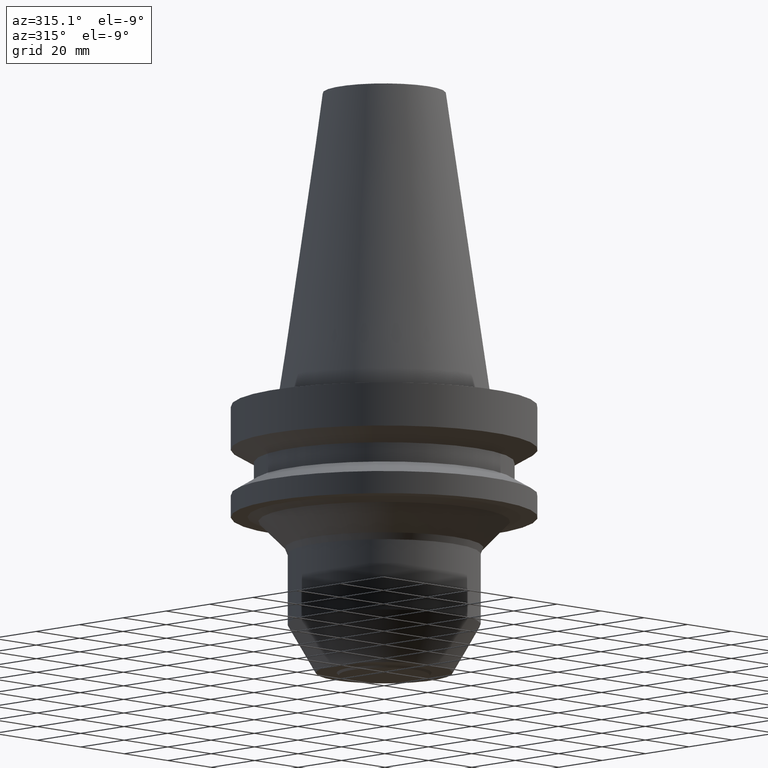
[diagram: clean part render]
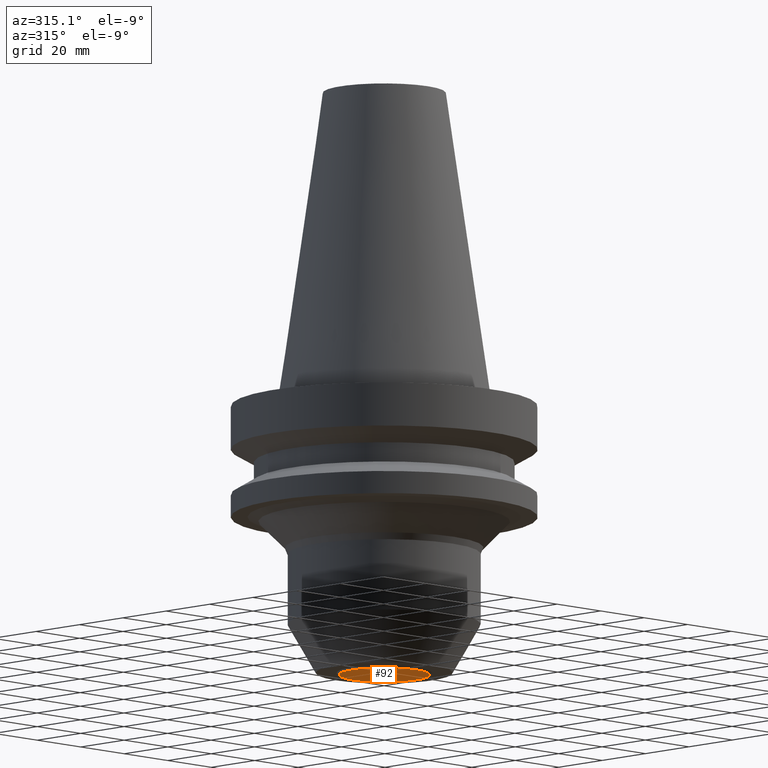
[diagram: same view with one face highlighted and labeled with its STEP entity id]
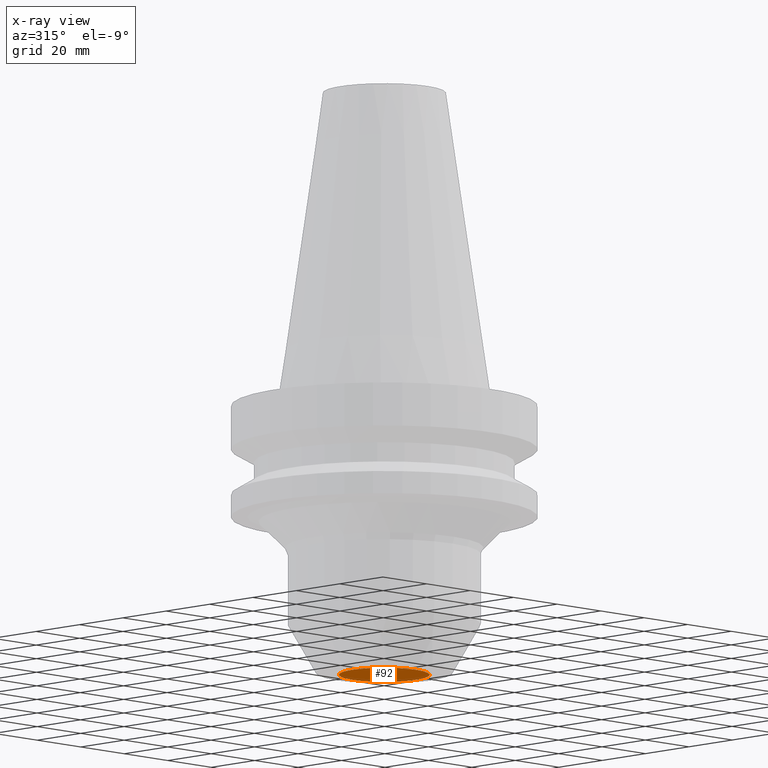
[diagram: x-ray of the same camera — body ghosted, the highlighted face saturated]
A machine part, auxiliary view. The second image highlights one B-rep face of the part: STEP entity #92.
The next image is the same camera in x-ray: the body ghosted, the highlighted face saturated — about 0% of this face is hidden behind the body in this view.
In plain terms, the highlighted planar face has unit normal (0, 0, -1).
Its self-contained STEP definition (entity closure, byte-faithful):
#92=ADVANCED_FACE('',(#144),#145,.T.);
#144=FACE_OUTER_BOUND('',#196,.T.);
#145=PLANE('',#197);
#196=EDGE_LOOP('',(#282));
#197=AXIS2_PLACEMENT_3D('',#283,#284,#285);
#282=ORIENTED_EDGE('',*,*,#302,.T.);
#283=CARTESIAN_POINT('',(5.51091059616302E-015,7.399999999991,-89.9999999999989));
#284=DIRECTION('',(6.12323399573677E-017,1.22464679914735E-016,-1.0));
#285=DIRECTION('',(-1.23259516440783E-032,1.0,1.22464679914735E-016));
#302=EDGE_CURVE('',#335,#335,#336,.T.);
#335=VERTEX_POINT('',#369);
#336=CIRCLE('',#370,14.799999999982);
#369=CARTESIAN_POINT('',(5.51091059616302E-015,14.799999999982,-89.9999999999989));
#370=AXIS2_PLACEMENT_3D('',#419,#420,#421);
#419=CARTESIAN_POINT('',(5.51091059616302E-015,1.1169900298349E-014,-89.9999999999989));
#420=DIRECTION('',(6.12323399573677E-017,6.14340833658348E-017,-1.0));
#421=DIRECTION('',(-8.58890540839304E-033,1.0,6.14340833658348E-017));